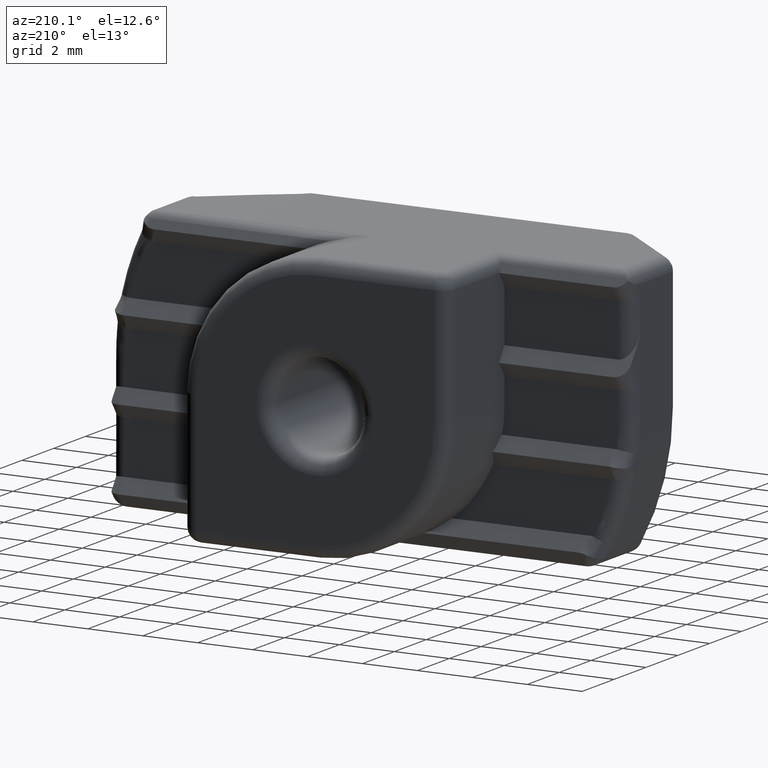
[diagram: clean part render]
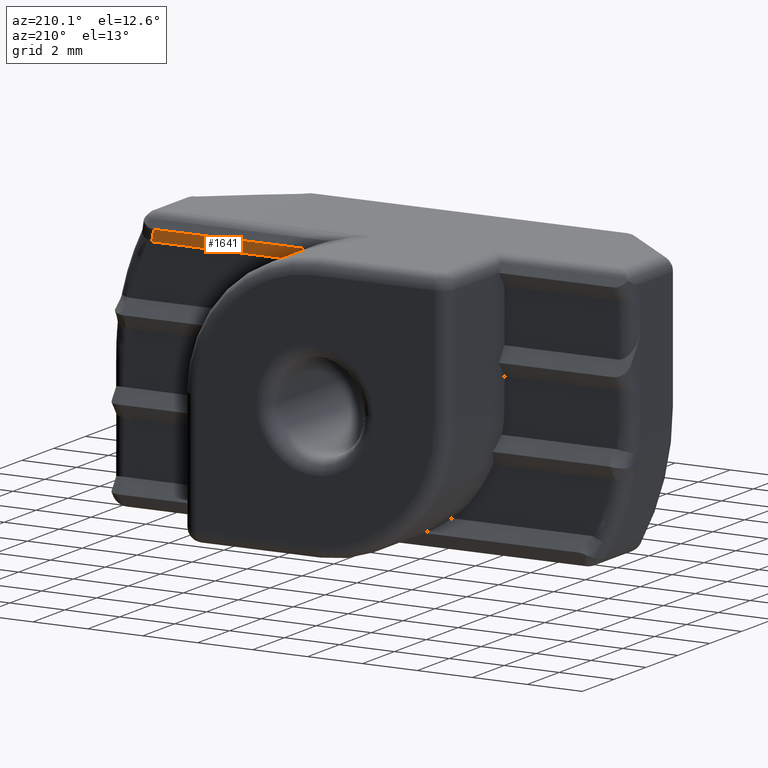
[diagram: same view with one face highlighted and labeled with its STEP entity id]
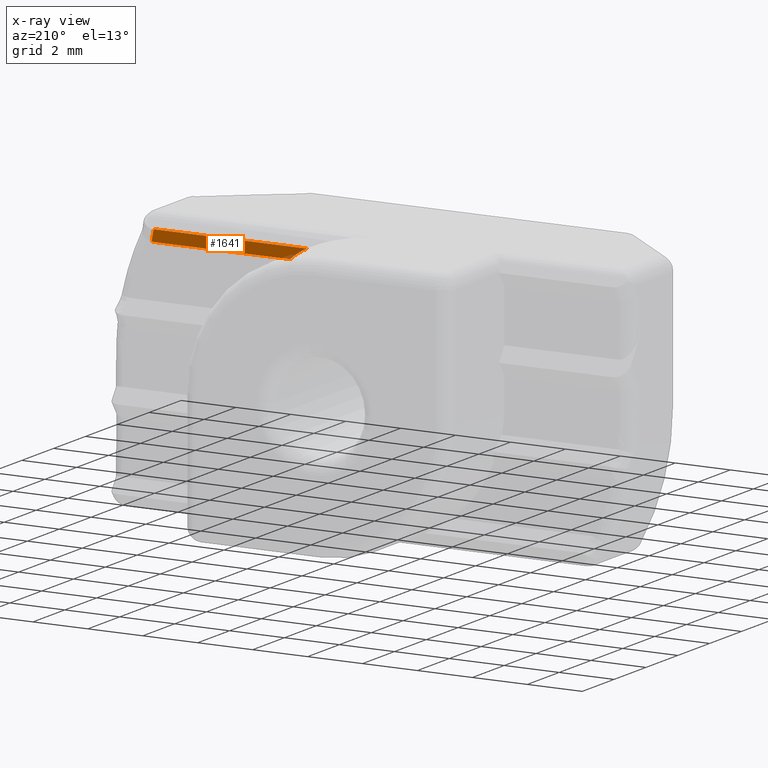
[diagram: x-ray of the same camera — body ghosted, the highlighted face saturated]
A machine part, auxiliary view. The second image highlights one B-rep face of the part: STEP entity #1641.
The next image is the same camera in x-ray: the body ghosted, the highlighted face saturated — about 2% of this face is hidden behind the body in this view.
In plain terms, the highlighted planar face has unit normal (-0, -0.8192, 0.5735).
Its self-contained STEP definition (entity closure, byte-faithful):
#184=PLANE('',#1848);
#286=FACE_OUTER_BOUND('',#395,.T.);
#395=EDGE_LOOP('',(#1454,#1455,#1456,#1457));
#498=LINE('',#3285,#599);
#499=LINE('',#3289,#600);
#599=VECTOR('',#2351,5.04338661473057);
#600=VECTOR('',#2356,5.56891018351794);
#624=ELLIPSE('',#1779,10.9859000541603,9.);
#641=ELLIPSE('',#1849,5.92017947363084,4.85);
#742=VERTEX_POINT('',#2914);
#743=VERTEX_POINT('',#2915);
#783=VERTEX_POINT('',#3283);
#784=VERTEX_POINT('',#3287);
#937=EDGE_CURVE('',#742,#743,#624,.T.);
#1019=EDGE_CURVE('',#742,#783,#498,.T.);
#1020=EDGE_CURVE('',#784,#783,#641,.T.);
#1021=EDGE_CURVE('',#743,#784,#499,.T.);
#1454=ORIENTED_EDGE('',*,*,#937,.F.);
#1455=ORIENTED_EDGE('',*,*,#1019,.T.);
#1456=ORIENTED_EDGE('',*,*,#1020,.F.);
#1457=ORIENTED_EDGE('',*,*,#1021,.F.);
#1641=ADVANCED_FACE('',(#286),#184,.F.);
#1779=AXIS2_PLACEMENT_3D('',#2916,#2178,#2179);
#1848=AXIS2_PLACEMENT_3D('',#3286,#2352,#2353);
#1849=AXIS2_PLACEMENT_3D('',#3288,#2354,#2355);
#2178=DIRECTION('center_axis',(-3.03176713556042E-16,-0.819231920519041,
0.573462344363328));
#2179=DIRECTION('ref_axis',(0.,0.573462344363328,0.81923192051904));
#2351=DIRECTION('',(-1.,3.70074341541719E-16,0.));
#2352=DIRECTION('center_axis',(-3.03176713556042E-16,-0.819231920519041,
0.573462344363328));
#2353=DIRECTION('ref_axis',(1.77635683940025E-16,0.573462344363328,0.81923192051904));
#2354=DIRECTION('center_axis',(3.03176713556042E-16,0.819231920519041,-0.573462344363328));
#2355=DIRECTION('ref_axis',(9.37659938833119E-17,-0.573462344363328,-0.819231920519041));
#2356=DIRECTION('',(-1.,1.47704651958136E-16,-3.17670985119404E-16));
#2914=CARTESIAN_POINT('',(7.9929628554811,-0.350000000000006,3.85));
#2915=CARTESIAN_POINT('',(7.71367124247066,-1.73419086758764E-15,4.35000000000001));
#2916=CARTESIAN_POINT('Origin',(1.51588356778021E-16,-3.24571182052717,
-0.286731172181664));
#3283=CARTESIAN_POINT('',(2.94957624075053,-0.350000000000001,3.85));
#3285=CARTESIAN_POINT('',(9.5,-0.350000000000006,3.85));
#3286=CARTESIAN_POINT('Origin',(9.5,-0.350000000000006,3.85));
#3287=CARTESIAN_POINT('',(2.14476105895272,-4.44089209850063E-15,4.35));
#3288=CARTESIAN_POINT('Origin',(5.55111512312578E-16,-3.045,0.));
#3289=CARTESIAN_POINT('',(9.5,-1.2490009027033E-15,4.35000000000001));